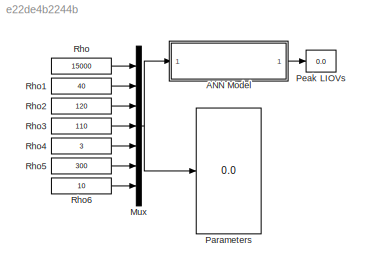
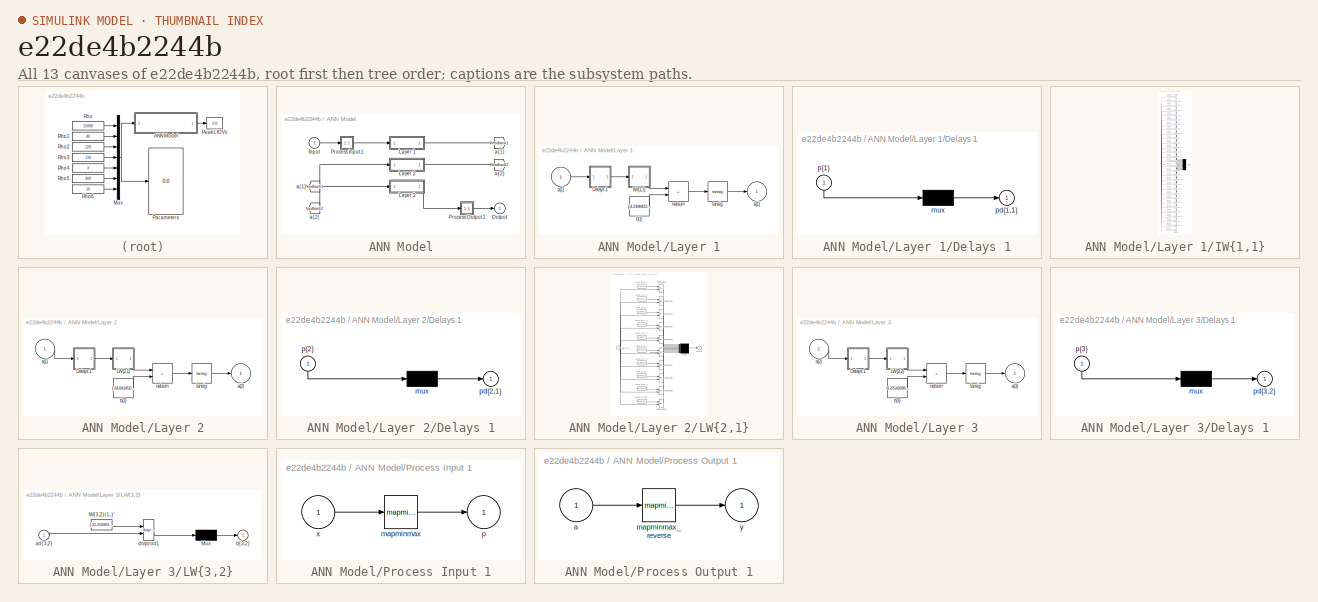
[diagram: thumbnail index - all 13 canvases of the model, root first then tree order]
MODEL slx_e22de4b2244b
KIND model
CONFIG AbsTol = auto
CONFIG EnableMultiTasking = off
CONFIG FixedStep = auto
CONFIG MaxStep = auto
CONFIG MinStep = auto
CONFIG RelTol = 1e-3
CONFIG SampleTimeConstraint = Unconstrained
CONFIG Solver = VariableStepAuto
CONFIG SolverName = VariableStepAuto
CONFIG StartTime = 0.0
CONFIG StopTime = 0.1
BLOCK [SubSystem] ANN Model
  Ports = [1, 1]
  RequestExecContextInheritance = off
BLOCK [From] ANN Model/ a{1} 
  GotoTag = feedback1
BLOCK [From] ANN Model/ a{2} 
  GotoTag = feedback2
BLOCK [Inport] ANN Model/Input
  PortDimensions = 7
BLOCK [SubSystem] ANN Model/Layer 1
  Ports = [1, 1]
  RequestExecContextInheritance = off
BLOCK [SubSystem] ANN Model/Layer 1/Delays 1
  Ports = [1, 1]
  RequestExecContextInheritance = off
BLOCK [Mux] ANN Model/Layer 1/Delays 1/mux
  Inputs = 1
  Ports = [1, 1]
BLOCK [Outport] ANN Model/Layer 1/Delays 1/pd{1,1}
BLOCK [Inport] ANN Model/Layer 1/Delays 1/p{1}
  NameLocation = left
  PortDimensions = 7
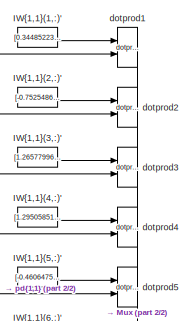
[diagram: ANN Model/Layer 1/IW{1,1} - part 1/2, top center region]
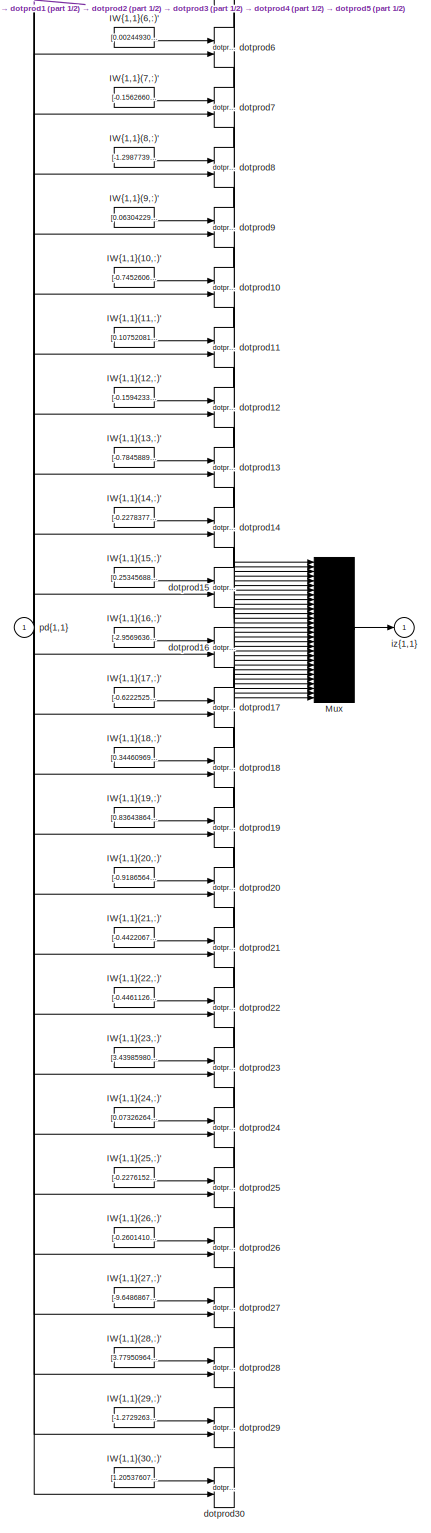
[diagram: ANN Model/Layer 1/IW{1,1} - part 2/2, most of the canvas]
BLOCK [SubSystem] ANN Model/Layer 1/IW{1,1}
  Ports = [1, 1]
  RequestExecContextInheritance = off
BLOCK [Constant] ANN Model/Layer 1/IW{1,1}/IW{1,1}(1,:)'
  Value = [0.3448522302365308878080440990743227303028106689453125;0.0237483186563666008594974954348799656145274639129638671875;-0.030342220055492342967173868828467675484716892242431640625;0.02335552297315511560693579440339817665517330169677734375;0.0001421167820220006696059489303962664052960462868213653564453125;-3.295039046024860862615923906560055911540985107421875;-0.00407630336533255574482659255863836733...<+21ch>
BLOCK [Constant] ANN Model/Layer 1/IW{1,1}/IW{1,1}(10,:)'
  Value = [-0.745260620125975048466671069036237895488739013671875;-0.036139502838535453310697675988194532692432403564453125;0.050521726495375507415275251332786865532398223876953125;1.6075838420978343368261676005204208195209503173828125;0.01057701175968173319674736632123313029296696186065673828125;-0.435164509700781521051027311841608025133609771728515625;-0.012433912320990853778157614328847557771950960159301...<+8ch>
BLOCK [Constant] ANN Model/Layer 1/IW{1,1}/IW{1,1}(11,:)'
  Value = [0.1075208124027290657043209876064793206751346588134765625;-0.00020841874431979786285416833546690895673236809670925140380859375;0.0086184347019432061554056190288974903523921966552734375;-0.91878914934653022061894489525002427399158477783203125;0.0001923404096374015733068862932242382157710380852222442626953125;0.06755343524663924570372586231314926408231258392333984375;0.00105188791019687169665808301...<+34ch>
BLOCK [Constant] ANN Model/Layer 1/IW{1,1}/IW{1,1}(12,:)'
  Value = [-0.1594233793625472739297066482322406955063343048095703125;-0.2123288116806423264648628901340998709201812744140625;0.405436649521685843478024935393477790057659149169921875;-0.0211904558074521888466623664726284914650022983551025390625;-0.0036782121032657394237019854443815347622148692607879638671875;-0.293359365982755859736386128133744932711124420166015625;0.0020946908621752003375193762479966608225...<+22ch>
BLOCK [Constant] ANN Model/Layer 1/IW{1,1}/IW{1,1}(13,:)'
  Value = [-0.784588966363430007078250127960927784442901611328125;21.78671996735630500552360899746417999267578125;-18.3088171181116621255569043569266796112060546875;2.49658113612057608321492807590402662754058837890625;-0.157676235625419991492890403605997562408447265625;-0.23765425018082042551981203359900973737239837646484375;-0.007369377513259535439349434682299033738672733306884765625]
BLOCK [Constant] ANN Model/Layer 1/IW{1,1}/IW{1,1}(14,:)'
  Value = [-0.227837793421028556029028777629719115793704986572265625;0.021309312244039098349634997475732234306633472442626953125;-2.892182695004396730809048676746897399425506591796875;0.032028928129140037117661421461889403872191905975341796875;0.0036536164758972544848447672194424740155227482318878173828125;0.772637113323102919792972897994332015514373779296875;-0.011296442334501482357422830204995989333838224...<+14ch>
BLOCK [Constant] ANN Model/Layer 1/IW{1,1}/IW{1,1}(15,:)'
  Value = [0.25345688340681682415578279687906615436077117919921875;0.0149587949298912552265061748357766191475093364715576171875;-0.016758926400474917495220239516129367984831333160400390625;0.0647332210713703337656710345981991849839687347412109375;-0.0012668836589356836930253535911106155253946781158447265625;0.00508054621757761913636297634866423322819173336029052734375;0.0039067068027666112389750807665222964...<+23ch>
BLOCK [Constant] ANN Model/Layer 1/IW{1,1}/IW{1,1}(16,:)'
  Value = [-2.9569636535694741041879751719534397125244140625;-0.0031105060544163766478309440799421281553804874420166015625;0.80326651097281398516969375123153440654277801513671875;0.0178893821224797265612149743674308410845696926116943359375;0.001987742974274367586950962305536450003273785114288330078125;0.1514435083030511164370324195260764099657535552978515625;0.07801855367079536807128903319608070887625217437...<+10ch>
BLOCK [Constant] ANN Model/Layer 1/IW{1,1}/IW{1,1}(17,:)'
  Value = [-0.62225252302450417829504658584482967853546142578125;-0.91162755556286700908685816102661192417144775390625;0.340987402740219047725389600600465200841426849365234375;-0.024044810647206656117891299118127790279686450958251953125;0.007613443911346290220165666795537617872469127178192138671875;0.190670230286742958814016901669674552977085113525390625;0.020700650669250735685933406671210832428187131881713...<+8ch>
BLOCK [Constant] ANN Model/Layer 1/IW{1,1}/IW{1,1}(18,:)'
  Value = [0.344609696654326669307266683972557075321674346923828125;0.094320042995400921181925468772533349692821502685546875;0.09050993945653572347875837067476822994649410247802734375;0.56773222085203289832833206673967652022838592529296875;7.65423725077612093943557614039718828280456364154815673828125e-05;0.047410632944010398792666904910220182500779628753662109375;-0.00661253821968285724480773879463413322810...<+20ch>
BLOCK [Constant] ANN Model/Layer 1/IW{1,1}/IW{1,1}(19,:)'
  Value = [0.8364386486605484005707467076717875897884368896484375;-24.39852649891798108683360624127089977264404296875;20.560902356213507147231212002225220203399658203125;-3.168857690798907444929000121192075312137603759765625;0.1540925974736297721090494405871140770614147186279296875;0.26928188024379551279707811772823333740234375;0.000770679205220097343111140819615911823348142206668853759765625]
BLOCK [Constant] ANN Model/Layer 1/IW{1,1}/IW{1,1}(2,:)'
  Value = [-0.752548608307870292577490545227192342281341552734375;0.11243153280728866716398073322125128470361232757568359375;0.5927209491473572899877808595192618668079376220703125;-0.06580359143040452607475998547670315019786357879638671875;0.0023946250384802689366303685147840951685793697834014892578125;-0.03233857021117332586346293510359828360378742218017578125;-0.0018092097531004448437985665520955080864951...<+18ch>
BLOCK [Constant] ANN Model/Layer 1/IW{1,1}/IW{1,1}(20,:)'
  Value = [-0.91865646013555168902797731789178214967250823974609375;0.0296954372580369753420459488779670209623873233795166015625;-0.011762440172248422864953454336500726640224456787109375;-0.18544587819202928979933631126186810433864593505859375;0.0035521157092755369609482496429109232849441468715667724609375;0.2370884083490034377472710502843256108462810516357421875;-0.00474860571920330664513754115318988624494...<+20ch>
BLOCK [Constant] ANN Model/Layer 1/IW{1,1}/IW{1,1}(21,:)'
  Value = [-0.4422067770750552906378061379655264317989349365234375;0.0288653681690222672917567336980937398038804531097412109375;6.37186863600328567969199866638518869876861572265625;-0.044887168425831465434772127309770439751446247100830078125;-0.1932639916606380126040676259435713291168212890625;-0.54801400216962703471068607541383244097232818603515625;0.048201396323313161484946931523154489696025848388671875]
BLOCK [Constant] ANN Model/Layer 1/IW{1,1}/IW{1,1}(22,:)'
  Value = [-0.446112631051539920701287655901978723704814910888671875;-0.07961079766109739608292983348292182199656963348388671875;-0.003218763112337450459088383780681397183798253536224365234375;0.00158061059209830558590359483872589407837949693202972412109375;0.0036382997739226471088647141272076623863540589809417724609375;0.345967262530882890825267850232194177806377410888671875;-0.0048699184408424927086866951...<+33ch>
BLOCK [Constant] ANN Model/Layer 1/IW{1,1}/IW{1,1}(23,:)'
  Value = [3.439859807894365406610859281499870121479034423828125;0.377279804240064409182053850599913857877254486083984375;0.0216043135620511972394552913101506419479846954345703125;-0.005745569542111579434962020940247384714893996715545654296875;0.03460094901719025506370286393575952388346195220947265625;0.459591711367286326339609558999654836952686309814453125;-0.20408877954194529213971520675841020420193672180...<+9ch>
BLOCK [Constant] ANN Model/Layer 1/IW{1,1}/IW{1,1}(24,:)'
  Value = [0.07326264796309016336106623157320427708327770233154296875;-0.132193034604881132221265715998015366494655609130859375;-2.253015043698611830080835716216824948787689208984375;-0.1327387273800798850320603605723590590059757232666015625;-0.0175531668497710020837576649910261039622128009796142578125;-1.48565727218548015997612310457043349742889404296875;-0.0091135973138698790629863566437052213586866855621...<+10ch>
BLOCK [Constant] ANN Model/Layer 1/IW{1,1}/IW{1,1}(25,:)'
  Value = [-0.22761522655829014016859446201124228537082672119140625;-0.0306264913088254674133903421306968084536492824554443359375;0.1467444247866898365817434068958391435444355010986328125;0.283168715939804582770733532015583477914333343505859375;-3.3096438118646325128591190178894976270385086536407470703125e-05;0.1691388093995498664856569348557968623936176300048828125;-0.01063316122752224618386307497530651744...<+20ch>
BLOCK [Constant] ANN Model/Layer 1/IW{1,1}/IW{1,1}(26,:)'
  Value = [-0.26014103282668343819494793933699838817119598388671875;7.17866524364082447817736465367488563060760498046875;0.7729500210780593238979463421856053173542022705078125;-0.03865847634880366368026471945995581336319446563720703125;-0.00426027980962515560869885433703529997728765010833740234375;-0.27698836242130819851325895797344855964183807373046875;0.0657931317305890106528210026226588524878025054931640...<+4ch>
BLOCK [Constant] ANN Model/Layer 1/IW{1,1}/IW{1,1}(27,:)'
  Value = [-9.6486867210206579414943917072378098964691162109375;0.7576846217616350909196398788481019437313079833984375;0.83601545732582505099372838230920024216175079345703125;-0.025185722885630867917683417545049451291561126708984375;-1.43125931626296587495517087518237531185150146484375;-4.98363377193292667044488553074188530445098876953125;-0.0049119029256305679620453474854002706706523895263671875]
BLOCK [Constant] ANN Model/Layer 1/IW{1,1}/IW{1,1}(28,:)'
  Value = [3.7795096419857117098217713646590709686279296875;0.1253334425111324590407235746170044876635074615478515625;0.10360601610988219578590729952338733710348606109619140625;0.001567890737294744089858067326304080779664218425750732421875;0.0345624670490160268432333623422891832888126373291015625;1.5522414538348936474676520447246730327606201171875;-0.1811251665173785607709788791908067651093006134033203125]
BLOCK [Constant] ANN Model/Layer 1/IW{1,1}/IW{1,1}(29,:)'
  Value = [-1.2729263310035310308165890091913752257823944091796875;0.0257278613259506704069590199424055754207074642181396484375;0.022764648795725643537490867629458080045878887176513671875;-0.00437574388560424409888582886196672916412353515625;-0.0023607924145831703233167075950404978357255458831787109375;0.0231650403676370957029018171624556998722255229949951171875;-0.012098695026969816593287454509209055686369...<+18ch>
BLOCK [Constant] ANN Model/Layer 1/IW{1,1}/IW{1,1}(3,:)'
  Value = [1.26577996526309011215971622732467949390411376953125;-0.129753538957110448048837270107469521462917327880859375;-0.70197856289481652680706247338093817234039306640625;-0.031912386202539534674205157216420047916471958160400390625;0.000840497151475362472110297584748650479014031589031219482421875;-1.0828412441507300201237740111537277698516845703125;0.0034135401403244799642400231221017747884616255760192...<+9ch>
BLOCK [Constant] ANN Model/Layer 1/IW{1,1}/IW{1,1}(30,:)'
  Value = [1.2053760795652903592412030775449238717555999755859375;0.07446028202006542418001089345125365070998668670654296875;-0.456725314104841018103542182871024124324321746826171875;-0.0289924253014325512822768615706081618554890155792236328125;-0.3439121476428221857446487774723209440708160400390625;0.7009527268420934209558481597923673689365386962890625;-0.021624572399332461086762791069304512348026037216186...<+8ch>
BLOCK [Constant] ANN Model/Layer 1/IW{1,1}/IW{1,1}(4,:)'
  Value = [1.2950585151400686445555265891016460955142974853515625;-0.173223230419484675035590726110967807471752166748046875;3.841757357224308666587830884964205324649810791015625;0.2057849653734108164027105658533400855958461761474609375;0.00957266633272023555190077814813776058144867420196533203125;0.313650203133755578477348535670898854732513427734375;-0.0179676448365098488657576325522313709370791912078857421...<+4ch>
BLOCK [Constant] ANN Model/Layer 1/IW{1,1}/IW{1,1}(5,:)'
  Value = [-0.460647597660743979286479543588939122855663299560546875;-0.06963513076575476856699964400831959210336208343505859375;-0.0022193402202923813264223706909206157433800399303436279296875;0.0026091251570878157446664591390117493574507534503936767578125;0.0036307085591989782073774062354232228244654834270477294921875;0.31041096606309703798132204610737971961498260498046875;-0.00500358166612570234160761728...<+32ch>
BLOCK [Constant] ANN Model/Layer 1/IW{1,1}/IW{1,1}(6,:)'
  Value = [0.0024493059636743947683756861266601845272816717624664306640625;0.08842594266869154007171260900577181018888950347900390625;-0.218776256361550458517939432567800395190715789794921875;-0.06621461363686119427907073031747131608426570892333984375;0.00110391502135288237067267669289094556006602942943572998046875;0.307907252101677519906530733351246453821659088134765625;-0.003876752311191684636365595295615...<+29ch>
BLOCK [Constant] ANN Model/Layer 1/IW{1,1}/IW{1,1}(7,:)'
  Value = [-0.1562660564463686230229910734124132432043552398681640625;-0.0647636649053276169940573936401051469147205352783203125;0.0652856262083485461289455997757613658905029296875;-0.01464262445750157647095246460366979590617120265960693359375;-0.00098185698318849841566280378657438632217235863208770751953125;0.7947962353307247429512472081114538013935089111328125;0.0036304524825613482437447476769420973141677...<+19ch>
BLOCK [Constant] ANN Model/Layer 1/IW{1,1}/IW{1,1}(8,:)'
  Value = [-1.2987739803438820285208521454478614032268524169921875;0.039903383470211710448705133558178204111754894256591796875;-0.145963179739080961550001802606857381761074066162109375;-1.4716769867982983921450568232103250920772552490234375;-5.2687437619749837545979342934288069955073297023773193359375e-05;2.47999107160288101425749118789099156856536865234375;-0.01315224112897133215693834529247396858409047126...<+12ch>
BLOCK [Constant] ANN Model/Layer 1/IW{1,1}/IW{1,1}(9,:)'
  Value = [0.0630422940980798485188785207355977036058902740478515625;0.01113967879787090310694797068435946130193769931793212890625;0.0638492352679780328372771691647358238697052001953125;-0.248561577597356475610723691715975292026996612548828125;-0.00119729920448310880702613712145421231980435550212860107421875;-0.1962684555440073197463135556972702033817768096923828125;0.001912086415045414827459935303011206997...<+24ch>
BLOCK [Mux] ANN Model/Layer 1/IW{1,1}/Mux
  Inputs = 30
  Ports = [30, 1]
BLOCK [Reference] ANN Model/Layer 1/IW{1,1}/dotprod1  REF=neural/Weight Functions/dotprod
  Ports = [2, 1]
  SourceBlock = neural/Weight Functions/dotprod
  SourceProductBaseCode = NN
  SourceType = DOTPROD
BLOCK [Reference] ANN Model/Layer 1/IW{1,1}/dotprod10  REF=neural/Weight Functions/dotprod
  Ports = [2, 1]
  SourceBlock = neural/Weight Functions/dotprod
  SourceProductBaseCode = NN
  SourceType = DOTPROD
BLOCK [Reference] ANN Model/Layer 1/IW{1,1}/dotprod11  REF=neural/Weight Functions/dotprod
  Ports = [2, 1]
  SourceBlock = neural/Weight Functions/dotprod
  SourceProductBaseCode = NN
  SourceType = DOTPROD
BLOCK [Reference] ANN Model/Layer 1/IW{1,1}/dotprod12  REF=neural/Weight Functions/dotprod
  Ports = [2, 1]
  SourceBlock = neural/Weight Functions/dotprod
  SourceProductBaseCode = NN
  SourceType = DOTPROD
BLOCK [Reference] ANN Model/Layer 1/IW{1,1}/dotprod13  REF=neural/Weight Functions/dotprod
  Ports = [2, 1]
  SourceBlock = neural/Weight Functions/dotprod
  SourceProductBaseCode = NN
  SourceType = DOTPROD
BLOCK [Reference] ANN Model/Layer 1/IW{1,1}/dotprod14  REF=neural/Weight Functions/dotprod
  Ports = [2, 1]
  SourceBlock = neural/Weight Functions/dotprod
  SourceProductBaseCode = NN
  SourceType = DOTPROD
BLOCK [Reference] ANN Model/Layer 1/IW{1,1}/dotprod15  REF=neural/Weight Functions/dotprod
  Ports = [2, 1]
  SourceBlock = neural/Weight Functions/dotprod
  SourceProductBaseCode = NN
  SourceType = DOTPROD
BLOCK [Reference] ANN Model/Layer 1/IW{1,1}/dotprod16  REF=neural/Weight Functions/dotprod
  Ports = [2, 1]
  SourceBlock = neural/Weight Functions/dotprod
  SourceProductBaseCode = NN
  SourceType = DOTPROD
BLOCK [Reference] ANN Model/Layer 1/IW{1,1}/dotprod17  REF=neural/Weight Functions/dotprod
  Ports = [2, 1]
  SourceBlock = neural/Weight Functions/dotprod
  SourceProductBaseCode = NN
  SourceType = DOTPROD
BLOCK [Reference] ANN Model/Layer 1/IW{1,1}/dotprod18  REF=neural/Weight Functions/dotprod
  Ports = [2, 1]
  SourceBlock = neural/Weight Functions/dotprod
  SourceProductBaseCode = NN
  SourceType = DOTPROD
BLOCK [Reference] ANN Model/Layer 1/IW{1,1}/dotprod19  REF=neural/Weight Functions/dotprod
  Ports = [2, 1]
  SourceBlock = neural/Weight Functions/dotprod
  SourceProductBaseCode = NN
  SourceType = DOTPROD
BLOCK [Reference] ANN Model/Layer 1/IW{1,1}/dotprod2  REF=neural/Weight Functions/dotprod
  Ports = [2, 1]
  SourceBlock = neural/Weight Functions/dotprod
  SourceProductBaseCode = NN
  SourceType = DOTPROD
BLOCK [Reference] ANN Model/Layer 1/IW{1,1}/dotprod20  REF=neural/Weight Functions/dotprod
  Ports = [2, 1]
  SourceBlock = neural/Weight Functions/dotprod
  SourceProductBaseCode = NN
  SourceType = DOTPROD
BLOCK [Reference] ANN Model/Layer 1/IW{1,1}/dotprod21  REF=neural/Weight Functions/dotprod
  Ports = [2, 1]
  SourceBlock = neural/Weight Functions/dotprod
  SourceProductBaseCode = NN
  SourceType = DOTPROD
BLOCK [Reference] ANN Model/Layer 1/IW{1,1}/dotprod22  REF=neural/Weight Functions/dotprod
  Ports = [2, 1]
  SourceBlock = neural/Weight Functions/dotprod
  SourceProductBaseCode = NN
  SourceType = DOTPROD
BLOCK [Reference] ANN Model/Layer 1/IW{1,1}/dotprod23  REF=neural/Weight Functions/dotprod
  Ports = [2, 1]
  SourceBlock = neural/Weight Functions/dotprod
  SourceProductBaseCode = NN
  SourceType = DOTPROD
BLOCK [Reference] ANN Model/Layer 1/IW{1,1}/dotprod24  REF=neural/Weight Functions/dotprod
  Ports = [2, 1]
  SourceBlock = neural/Weight Functions/dotprod
  SourceProductBaseCode = NN
  SourceType = DOTPROD
BLOCK [Reference] ANN Model/Layer 1/IW{1,1}/dotprod25  REF=neural/Weight Functions/dotprod
  Ports = [2, 1]
  SourceBlock = neural/Weight Functions/dotprod
  SourceProductBaseCode = NN
  SourceType = DOTPROD
BLOCK [Reference] ANN Model/Layer 1/IW{1,1}/dotprod26  REF=neural/Weight Functions/dotprod
  Ports = [2, 1]
  SourceBlock = neural/Weight Functions/dotprod
  SourceProductBaseCode = NN
  SourceType = DOTPROD
BLOCK [Reference] ANN Model/Layer 1/IW{1,1}/dotprod27  REF=neural/Weight Functions/dotprod
  Ports = [2, 1]
  SourceBlock = neural/Weight Functions/dotprod
  SourceProductBaseCode = NN
  SourceType = DOTPROD
BLOCK [Reference] ANN Model/Layer 1/IW{1,1}/dotprod28  REF=neural/Weight Functions/dotprod
  Ports = [2, 1]
  SourceBlock = neural/Weight Functions/dotprod
  SourceProductBaseCode = NN
  SourceType = DOTPROD
BLOCK [Reference] ANN Model/Layer 1/IW{1,1}/dotprod29  REF=neural/Weight Functions/dotprod
  Ports = [2, 1]
  SourceBlock = neural/Weight Functions/dotprod
  SourceProductBaseCode = NN
  SourceType = DOTPROD
BLOCK [Reference] ANN Model/Layer 1/IW{1,1}/dotprod3  REF=neural/Weight Functions/dotprod
  Ports = [2, 1]
  SourceBlock = neural/Weight Functions/dotprod
  SourceProductBaseCode = NN
  SourceType = DOTPROD
BLOCK [Reference] ANN Model/Layer 1/IW{1,1}/dotprod30  REF=neural/Weight Functions/dotprod
  Ports = [2, 1]
  SourceBlock = neural/Weight Functions/dotprod
  SourceProductBaseCode = NN
  SourceType = DOTPROD
BLOCK [Reference] ANN Model/Layer 1/IW{1,1}/dotprod4  REF=neural/Weight Functions/dotprod
  Ports = [2, 1]
  SourceBlock = neural/Weight Functions/dotprod
  SourceProductBaseCode = NN
  SourceType = DOTPROD
BLOCK [Reference] ANN Model/Layer 1/IW{1,1}/dotprod5  REF=neural/Weight Functions/dotprod
  Ports = [2, 1]
  SourceBlock = neural/Weight Functions/dotprod
  SourceProductBaseCode = NN
  SourceType = DOTPROD
BLOCK [Reference] ANN Model/Layer 1/IW{1,1}/dotprod6  REF=neural/Weight Functions/dotprod
  Ports = [2, 1]
  SourceBlock = neural/Weight Functions/dotprod
  SourceProductBaseCode = NN
  SourceType = DOTPROD
BLOCK [Reference] ANN Model/Layer 1/IW{1,1}/dotprod7  REF=neural/Weight Functions/dotprod
  Ports = [2, 1]
  SourceBlock = neural/Weight Functions/dotprod
  SourceProductBaseCode = NN
  SourceType = DOTPROD
BLOCK [Reference] ANN Model/Layer 1/IW{1,1}/dotprod8  REF=neural/Weight Functions/dotprod
  Ports = [2, 1]
  SourceBlock = neural/Weight Functions/dotprod
  SourceProductBaseCode = NN
  SourceType = DOTPROD
BLOCK [Reference] ANN Model/Layer 1/IW{1,1}/dotprod9  REF=neural/Weight Functions/dotprod
  Ports = [2, 1]
  SourceBlock = neural/Weight Functions/dotprod
  SourceProductBaseCode = NN
  SourceType = DOTPROD
BLOCK [Outport] ANN Model/Layer 1/IW{1,1}/iz{1,1}
BLOCK [Inport] ANN Model/Layer 1/IW{1,1}/pd{1,1}
  PortDimensions = 7
BLOCK [Outport] ANN Model/Layer 1/a{1}
  InitialOutput = [0;0;0;0;0;0;0;0;0;0;0;0;0;0;0;0;0;0;0;0;0;0;0;0;0;0;0;0;0;0]
BLOCK [Constant] ANN Model/Layer 1/b{1}
  Value = [-4.21884236807136492330982946441508829593658447265625;0.98707185775102235236744263602304272353649139404296875;-1.924835431116346029511987580917775630950927734375;-7.0306393042924586467279368662275373935699462890625;-0.27154440122553591407950079883448779582977294921875;-0.86617933572449012924465705509646795690059661865234375;1.052050375427601380806663655675947666168212890625;6.48814145943306108677...<+1254ch>
BLOCK [Sum] ANN Model/Layer 1/netsum
  IconShape = rectangular
  InputSameDT = on
  Inputs = 2
  OutDataTypeStr = Inherit: Same as first input
  Ports = [2, 1]
  SaturateOnIntegerOverflow = on
BLOCK [Inport] ANN Model/Layer 1/p{1}
  PortDimensions = 7
BLOCK [Reference] ANN Model/Layer 1/tansig  REF=neural/Transfer Functions/tansig
  Ports = [1, 1]
  SourceBlock = neural/Transfer Functions/tansig
  SourceProductBaseCode = NN
  SourceType = TANSIG
BLOCK [SubSystem] ANN Model/Layer 2
  Ports = [1, 1]
  RequestExecContextInheritance = off
BLOCK [SubSystem] ANN Model/Layer 2/Delays 1
  Ports = [1, 1]
  RequestExecContextInheritance = off
BLOCK [Mux] ANN Model/Layer 2/Delays 1/mux
  Inputs = 1
  Ports = [1, 1]
BLOCK [Outport] ANN Model/Layer 2/Delays 1/pd{2,1}
BLOCK [Inport] ANN Model/Layer 2/Delays 1/p{2}
  NameLocation = left
  PortDimensions = 30
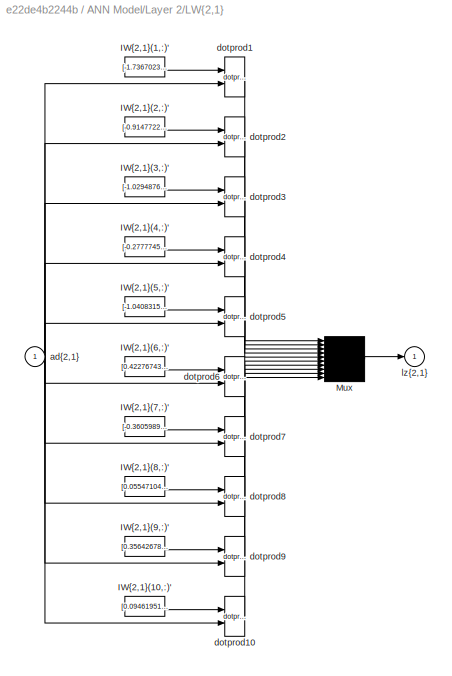
BLOCK [SubSystem] ANN Model/Layer 2/LW{2,1}
  Ports = [1, 1]
  RequestExecContextInheritance = off
BLOCK [Constant] ANN Model/Layer 2/LW{2,1}/IW{2,1}(1,:)'
  Value = [-1.736702373060485360412030786392278969287872314453125;-0.10084032094074872609734683237547869794070720672607421875;-0.0187677676469678068882362964586718589998781681060791015625;0.73159532536644589217900147559703327715396881103515625;0.94918452673003572694909735218971036374568939208984375;0.67829040341776580813615282750106416642665863037109375;0.1514320792879229604643853690504329279065132141113281...<+1339ch>
BLOCK [Constant] ANN Model/Layer 2/LW{2,1}/IW{2,1}(10,:)'
  Value = [0.094619519040325006375979910444584675133228302001953125;-2.396111047777731872798767653875984251499176025390625;-1.219313666844150656487499873037450015544891357421875;6.35986947872400332215647722478024661540985107421875;7.6558010484814378315832072985358536243438720703125;-3.474598490477485146499248003237880766391754150390625;-0.7319582115567457858418265459476970136165618896484375;-8.2900966070531...<+1247ch>
BLOCK [Constant] ANN Model/Layer 2/LW{2,1}/IW{2,1}(2,:)'
  Value = [-0.9147722841332333043595781418844126164913177490234375;-2.12550122100013094694759274716489017009735107421875;-2.0475929066404372491660978994332253932952880859375;17.084084558817114185558239114470779895782470703125;-2.780211941650253759661381991463713347911834716796875;-10.34486710781697382799393380992114543914794921875;-0.32324176368686552418552082599489949643611907958984375;19.38940670661893506...<+1283ch>
BLOCK [Constant] ANN Model/Layer 2/LW{2,1}/IW{2,1}(3,:)'
  Value = [-1.0294876867988396185182864428497850894927978515625;0.1739605865485802371761536733174580149352550506591796875;0.016606134747498335624271703636622987687587738037109375;-0.307846726773079171213254312533535994589328765869140625;3.379667863926612003666605232865549623966217041015625;-0.48517807121968814509926914979587309062480926513671875;0.9269091651425327427205047570168972015380859375;4.32603651766...<+1326ch>
BLOCK [Constant] ANN Model/Layer 2/LW{2,1}/IW{2,1}(4,:)'
  Value = [-0.27777458184173975386244137553148902952671051025390625;-12.361230614434671082335626124404370784759521484375;-0.2324868520111587899545924074118374846875667572021484375;-4.33612685300502231910968475858680903911590576171875;15.6709913578044730542160323238931596279144287109375;-27.58078431099844607388149597682058811187744140625;-1.3202895238115470721851352209341712296009063720703125;10.240951696608...<+1205ch>
BLOCK [Constant] ANN Model/Layer 2/LW{2,1}/IW{2,1}(5,:)'
  Value = [-1.0408315320648624524579872741014696657657623291015625;-0.64246622374551787260088531184010207653045654296875;0.1468046894595778362191396126945619471371173858642578125;-2.40241097625543975624395898194052278995513916015625;14.2558727307199060163611648022197186946868896484375;3.69614714690088330684147877036593854427337646484375;-1.044715924230513959258814793429337441921234130859375;-1.0876381478993...<+1290ch>
BLOCK [Constant] ANN Model/Layer 2/LW{2,1}/IW{2,1}(6,:)'
  Value = [0.422767438680426932418043861616752110421657562255859375;0.432313720012852786833690288403886370360851287841796875;-0.81927705514701976152736051517422311007976531982421875;-0.445561973928590593363452398989466018974781036376953125;10.690812896910866669486495084129273891448974609375;-0.70817591383247135983225462041446007788181304931640625;0.023269063305959784837551040936887147836387157440185546875;-...<+1337ch>
BLOCK [Constant] ANN Model/Layer 2/LW{2,1}/IW{2,1}(7,:)'
  Value = [-0.360598959094513060730236020390293560922145843505859375;4.960880004976200297051036613993346691131591796875;2.04180159619436540907599919592030346393585205078125;-1.023614571518048688147928260150365531444549560546875;15.9550062286956748636157499277032911777496337890625;9.8852510352074460797666688449680805206298828125;-1.1023548335418780208527778086136095225811004638671875;17.821984166130633298052...<+1221ch>
BLOCK [Constant] ANN Model/Layer 2/LW{2,1}/IW{2,1}(8,:)'
  Value = [0.05547104367496639987233919555364991538226604461669921875;0.00715788085070603700976743510864253039471805095672607421875;-0.00278113093058021502990140305655586416833102703094482421875;0.0133484936463816976359719745914844679646193981170654296875;0.74010371014631515240722592352540232241153717041015625;-0.0630951542673680310091555156759568490087985992431640625;-0.018945134937043715817051037220153375...<+1457ch>
BLOCK [Constant] ANN Model/Layer 2/LW{2,1}/IW{2,1}(9,:)'
  Value = [0.3564267883744840492710181933944113552570343017578125;0.037056015635938667485138608981287688948214054107666015625;0.7767753989225238964166919686249457299709320068359375;5.515529504551583528382252552546560764312744140625;5.8589191149324886254134980845265090465545654296875;-1.876388577546759250935792806558310985565185546875;0.67462388304596621058095706757740117609500885009765625;10.677484273925363...<+1273ch>
BLOCK [Mux] ANN Model/Layer 2/LW{2,1}/Mux
  Inputs = 10
  Ports = [10, 1]
BLOCK [Inport] ANN Model/Layer 2/LW{2,1}/ad{2,1}
  PortDimensions = 30
BLOCK [Reference] ANN Model/Layer 2/LW{2,1}/dotprod1  REF=neural/Weight Functions/dotprod
  Ports = [2, 1]
  SourceBlock = neural/Weight Functions/dotprod
  SourceProductBaseCode = NN
  SourceType = DOTPROD
BLOCK [Reference] ANN Model/Layer 2/LW{2,1}/dotprod10  REF=neural/Weight Functions/dotprod
  Ports = [2, 1]
  SourceBlock = neural/Weight Functions/dotprod
  SourceProductBaseCode = NN
  SourceType = DOTPROD
BLOCK [Reference] ANN Model/Layer 2/LW{2,1}/dotprod2  REF=neural/Weight Functions/dotprod
  Ports = [2, 1]
  SourceBlock = neural/Weight Functions/dotprod
  SourceProductBaseCode = NN
  SourceType = DOTPROD
BLOCK [Reference] ANN Model/Layer 2/LW{2,1}/dotprod3  REF=neural/Weight Functions/dotprod
  Ports = [2, 1]
  SourceBlock = neural/Weight Functions/dotprod
  SourceProductBaseCode = NN
  SourceType = DOTPROD
BLOCK [Reference] ANN Model/Layer 2/LW{2,1}/dotprod4  REF=neural/Weight Functions/dotprod
  Ports = [2, 1]
  SourceBlock = neural/Weight Functions/dotprod
  SourceProductBaseCode = NN
  SourceType = DOTPROD
BLOCK [Reference] ANN Model/Layer 2/LW{2,1}/dotprod5  REF=neural/Weight Functions/dotprod
  Ports = [2, 1]
  SourceBlock = neural/Weight Functions/dotprod
  SourceProductBaseCode = NN
  SourceType = DOTPROD
BLOCK [Reference] ANN Model/Layer 2/LW{2,1}/dotprod6  REF=neural/Weight Functions/dotprod
  Ports = [2, 1]
  SourceBlock = neural/Weight Functions/dotprod
  SourceProductBaseCode = NN
  SourceType = DOTPROD
BLOCK [Reference] ANN Model/Layer 2/LW{2,1}/dotprod7  REF=neural/Weight Functions/dotprod
  Ports = [2, 1]
  SourceBlock = neural/Weight Functions/dotprod
  SourceProductBaseCode = NN
  SourceType = DOTPROD
BLOCK [Reference] ANN Model/Layer 2/LW{2,1}/dotprod8  REF=neural/Weight Functions/dotprod
  Ports = [2, 1]
  SourceBlock = neural/Weight Functions/dotprod
  SourceProductBaseCode = NN
  SourceType = DOTPROD
BLOCK [Reference] ANN Model/Layer 2/LW{2,1}/dotprod9  REF=neural/Weight Functions/dotprod
  Ports = [2, 1]
  SourceBlock = neural/Weight Functions/dotprod
  SourceProductBaseCode = NN
  SourceType = DOTPROD
BLOCK [Outport] ANN Model/Layer 2/LW{2,1}/lz{2,1}
BLOCK [Inport] ANN Model/Layer 2/a{1} 
  PortDimensions = 30
BLOCK [Outport] ANN Model/Layer 2/a{2}
  InitialOutput = [0;0;0;0;0;0;0;0;0;0]
BLOCK [Constant] ANN Model/Layer 2/b{2}
  Value = [-14.8418507801999144390947549254633486270904541015625;-11.1243180357406341585146947181783616542816162109375;-4.52716808246609669907911666086874902248382568359375;-0.350434686094448277771107314038090407848358154296875;1.0967436167165016680513645042083226144313812255859375;-0.79822685580333840871247730319737456738948822021484375;-5.999465252637374845789963728748261928558349609375;0.4785130888415979...<+145ch>
BLOCK [Sum] ANN Model/Layer 2/netsum
  IconShape = rectangular
  InputSameDT = on
  Inputs = 2
  OutDataTypeStr = Inherit: Same as first input
  Ports = [2, 1]
  SaturateOnIntegerOverflow = on
BLOCK [Reference] ANN Model/Layer 2/tansig  REF=neural/Transfer Functions/tansig
  Ports = [1, 1]
  SourceBlock = neural/Transfer Functions/tansig
  SourceProductBaseCode = NN
  SourceType = TANSIG
BLOCK [SubSystem] ANN Model/Layer 3
  Ports = [1, 1]
  RequestExecContextInheritance = off
BLOCK [SubSystem] ANN Model/Layer 3/Delays 1
  Ports = [1, 1]
  RequestExecContextInheritance = off
BLOCK [Mux] ANN Model/Layer 3/Delays 1/mux
  Inputs = 1
  Ports = [1, 1]
BLOCK [Outport] ANN Model/Layer 3/Delays 1/pd{3,2}
BLOCK [Inport] ANN Model/Layer 3/Delays 1/p{3}
  NameLocation = left
  PortDimensions = 10
BLOCK [SubSystem] ANN Model/Layer 3/LW{3,2}
  Ports = [1, 1]
  RequestExecContextInheritance = off
BLOCK [Constant] ANN Model/Layer 3/LW{3,2}/IW{3,2}(1,:)'
  Value = [-25.250883780423141189430680242367088794708251953125;-29.33588427454181868370142183266580104827880859375;-0.7097479285049075325986223106156103312969207763671875;5.2022367175545642936640433617867529392242431640625;0.13769657712473393207375238489476032555103302001953125;-13.2628980233947917355408208095468580722808837890625;0.0110021376052105122889113175688180490396916866302490234375;27.910071481600...<+140ch>
BLOCK [Mux] ANN Model/Layer 3/LW{3,2}/Mux
  Inputs = 1
  Ports = [1, 1]
BLOCK [Inport] ANN Model/Layer 3/LW{3,2}/ad{3,2}
  PortDimensions = 10
BLOCK [Reference] ANN Model/Layer 3/LW{3,2}/dotprod1  REF=neural/Weight Functions/dotprod
  Ports = [2, 1]
  SourceBlock = neural/Weight Functions/dotprod
  SourceProductBaseCode = NN
  SourceType = DOTPROD
BLOCK [Outport] ANN Model/Layer 3/LW{3,2}/lz{3,2}
BLOCK [Inport] ANN Model/Layer 3/a{2} 
  PortDimensions = 10
BLOCK [Outport] ANN Model/Layer 3/a{3}
  InitialOutput = 0
BLOCK [Constant] ANN Model/Layer 3/b{3}
  Value = -8.225426963230088261980199604295194149017333984375
BLOCK [Sum] ANN Model/Layer 3/netsum
  IconShape = rectangular
  InputSameDT = on
  Inputs = 2
  OutDataTypeStr = Inherit: Same as first input
  Ports = [2, 1]
  SaturateOnIntegerOverflow = on
BLOCK [Reference] ANN Model/Layer 3/tansig  REF=neural/Transfer Functions/tansig
  Ports = [1, 1]
  SourceBlock = neural/Transfer Functions/tansig
  SourceProductBaseCode = NN
  SourceType = TANSIG
BLOCK [Outport] ANN Model/Output
  InitialOutput = 0
BLOCK [SubSystem] ANN Model/Process Input 1
  Ports = [1, 1]
  RequestExecContextInheritance = off
BLOCK [Reference] ANN Model/Process Input 1/mapminmax  REF=neural/Processing Functions/mapminmax
  Ports = [1, 1]
  SourceBlock = neural/Processing Functions/mapminmax
  SourceProductBaseCode = NN
  SourceType = MAPMINMAX Preprocess
BLOCK [Outport] ANN Model/Process Input 1/p
  PortDimensions = 7
BLOCK [Inport] ANN Model/Process Input 1/x
  PortDimensions = 7
BLOCK [SubSystem] ANN Model/Process Output 1
  Ports = [1, 1]
  RequestExecContextInheritance = off
BLOCK [Inport] ANN Model/Process Output 1/a
  PortDimensions = 1
BLOCK [Reference] ANN Model/Process Output 1/mapminmax_reverse  REF=neural/Processing Functions/mapminmax_reverse
  Ports = [1, 1]
  SourceBlock = neural/Processing Functions/mapminmax_reverse
  SourceProductBaseCode = NN
  SourceType = MAPMINMAX Reverse Process
BLOCK [Outport] ANN Model/Process Output 1/y
  PortDimensions = 1
BLOCK [Goto] ANN Model/a{1}
  GotoTag = feedback1
BLOCK [Goto] ANN Model/a{2}
  GotoTag = feedback2
BLOCK [Mux] Mux
  DisplayOption = bar
  Inputs = 7
  Ports = [7, 1]
BLOCK [Display] Parameters
  Decimation = 1
  Ports = [1]
BLOCK [Display] Peak LIOVs
  Decimation = 1
  Ports = [1]
BLOCK [Constant] Rho
  SampleTime = 1
  Value = 15000
BLOCK [Constant] Rho1
  SampleTime = 1
  Value = 40
BLOCK [Constant] Rho2
  SampleTime = 1
  Value = 120
BLOCK [Constant] Rho3
  SampleTime = 1
  Value = 110
BLOCK [Constant] Rho4
  SampleTime = 1
  Value = 3
BLOCK [Constant] Rho5
  SampleTime = 1
  Value = 300
BLOCK [Constant] Rho6
  SampleTime = 1
  Value = 10
LINE ANN Model/ a{1} :1 -> ANN Model/Layer 2:1
LINE ANN Model/ a{2} :1 -> ANN Model/Layer 3:1
LINE ANN Model/Input:1 -> ANN Model/Process Input 1:1
LINE ANN Model/Layer 1/Delays 1/mux:1 -> ANN Model/Layer 1/Delays 1/pd{1,1}:1
LINE ANN Model/Layer 1/Delays 1/p{1}:1 -> ANN Model/Layer 1/Delays 1/mux:1
LINE ANN Model/Layer 1/Delays 1:1 -> ANN Model/Layer 1/IW{1,1}:1
LINE ANN Model/Layer 1/IW{1,1}/IW{1,1}(1,:)':1 -> ANN Model/Layer 1/IW{1,1}/dotprod1:1
LINE ANN Model/Layer 1/IW{1,1}/IW{1,1}(10,:)':1 -> ANN Model/Layer 1/IW{1,1}/dotprod10:1
LINE ANN Model/Layer 1/IW{1,1}/IW{1,1}(11,:)':1 -> ANN Model/Layer 1/IW{1,1}/dotprod11:1
LINE ANN Model/Layer 1/IW{1,1}/IW{1,1}(12,:)':1 -> ANN Model/Layer 1/IW{1,1}/dotprod12:1
LINE ANN Model/Layer 1/IW{1,1}/IW{1,1}(13,:)':1 -> ANN Model/Layer 1/IW{1,1}/dotprod13:1
LINE ANN Model/Layer 1/IW{1,1}/IW{1,1}(14,:)':1 -> ANN Model/Layer 1/IW{1,1}/dotprod14:1
LINE ANN Model/Layer 1/IW{1,1}/IW{1,1}(15,:)':1 -> ANN Model/Layer 1/IW{1,1}/dotprod15:1
LINE ANN Model/Layer 1/IW{1,1}/IW{1,1}(16,:)':1 -> ANN Model/Layer 1/IW{1,1}/dotprod16:1
LINE ANN Model/Layer 1/IW{1,1}/IW{1,1}(17,:)':1 -> ANN Model/Layer 1/IW{1,1}/dotprod17:1
LINE ANN Model/Layer 1/IW{1,1}/IW{1,1}(18,:)':1 -> ANN Model/Layer 1/IW{1,1}/dotprod18:1
LINE ANN Model/Layer 1/IW{1,1}/IW{1,1}(19,:)':1 -> ANN Model/Layer 1/IW{1,1}/dotprod19:1
LINE ANN Model/Layer 1/IW{1,1}/IW{1,1}(2,:)':1 -> ANN Model/Layer 1/IW{1,1}/dotprod2:1
LINE ANN Model/Layer 1/IW{1,1}/IW{1,1}(20,:)':1 -> ANN Model/Layer 1/IW{1,1}/dotprod20:1
LINE ANN Model/Layer 1/IW{1,1}/IW{1,1}(21,:)':1 -> ANN Model/Layer 1/IW{1,1}/dotprod21:1
LINE ANN Model/Layer 1/IW{1,1}/IW{1,1}(22,:)':1 -> ANN Model/Layer 1/IW{1,1}/dotprod22:1
LINE ANN Model/Layer 1/IW{1,1}/IW{1,1}(23,:)':1 -> ANN Model/Layer 1/IW{1,1}/dotprod23:1
LINE ANN Model/Layer 1/IW{1,1}/IW{1,1}(24,:)':1 -> ANN Model/Layer 1/IW{1,1}/dotprod24:1
LINE ANN Model/Layer 1/IW{1,1}/IW{1,1}(25,:)':1 -> ANN Model/Layer 1/IW{1,1}/dotprod25:1
LINE ANN Model/Layer 1/IW{1,1}/IW{1,1}(26,:)':1 -> ANN Model/Layer 1/IW{1,1}/dotprod26:1
LINE ANN Model/Layer 1/IW{1,1}/IW{1,1}(27,:)':1 -> ANN Model/Layer 1/IW{1,1}/dotprod27:1
LINE ANN Model/Layer 1/IW{1,1}/IW{1,1}(28,:)':1 -> ANN Model/Layer 1/IW{1,1}/dotprod28:1
LINE ANN Model/Layer 1/IW{1,1}/IW{1,1}(29,:)':1 -> ANN Model/Layer 1/IW{1,1}/dotprod29:1
LINE ANN Model/Layer 1/IW{1,1}/IW{1,1}(3,:)':1 -> ANN Model/Layer 1/IW{1,1}/dotprod3:1
LINE ANN Model/Layer 1/IW{1,1}/IW{1,1}(30,:)':1 -> ANN Model/Layer 1/IW{1,1}/dotprod30:1
LINE ANN Model/Layer 1/IW{1,1}/IW{1,1}(4,:)':1 -> ANN Model/Layer 1/IW{1,1}/dotprod4:1
LINE ANN Model/Layer 1/IW{1,1}/IW{1,1}(5,:)':1 -> ANN Model/Layer 1/IW{1,1}/dotprod5:1
LINE ANN Model/Layer 1/IW{1,1}/IW{1,1}(6,:)':1 -> ANN Model/Layer 1/IW{1,1}/dotprod6:1
LINE ANN Model/Layer 1/IW{1,1}/IW{1,1}(7,:)':1 -> ANN Model/Layer 1/IW{1,1}/dotprod7:1
LINE ANN Model/Layer 1/IW{1,1}/IW{1,1}(8,:)':1 -> ANN Model/Layer 1/IW{1,1}/dotprod8:1
LINE ANN Model/Layer 1/IW{1,1}/IW{1,1}(9,:)':1 -> ANN Model/Layer 1/IW{1,1}/dotprod9:1
LINE ANN Model/Layer 1/IW{1,1}/Mux:1 -> ANN Model/Layer 1/IW{1,1}/iz{1,1}:1
LINE ANN Model/Layer 1/IW{1,1}/dotprod10:1 -> ANN Model/Layer 1/IW{1,1}/Mux:10
LINE ANN Model/Layer 1/IW{1,1}/dotprod11:1 -> ANN Model/Layer 1/IW{1,1}/Mux:11
LINE ANN Model/Layer 1/IW{1,1}/dotprod12:1 -> ANN Model/Layer 1/IW{1,1}/Mux:12
LINE ANN Model/Layer 1/IW{1,1}/dotprod13:1 -> ANN Model/Layer 1/IW{1,1}/Mux:13
LINE ANN Model/Layer 1/IW{1,1}/dotprod14:1 -> ANN Model/Layer 1/IW{1,1}/Mux:14
LINE ANN Model/Layer 1/IW{1,1}/dotprod15:1 -> ANN Model/Layer 1/IW{1,1}/Mux:15
LINE ANN Model/Layer 1/IW{1,1}/dotprod16:1 -> ANN Model/Layer 1/IW{1,1}/Mux:16
LINE ANN Model/Layer 1/IW{1,1}/dotprod17:1 -> ANN Model/Layer 1/IW{1,1}/Mux:17
LINE ANN Model/Layer 1/IW{1,1}/dotprod18:1 -> ANN Model/Layer 1/IW{1,1}/Mux:18
LINE ANN Model/Layer 1/IW{1,1}/dotprod19:1 -> ANN Model/Layer 1/IW{1,1}/Mux:19
LINE ANN Model/Layer 1/IW{1,1}/dotprod1:1 -> ANN Model/Layer 1/IW{1,1}/Mux:1
LINE ANN Model/Layer 1/IW{1,1}/dotprod20:1 -> ANN Model/Layer 1/IW{1,1}/Mux:20
LINE ANN Model/Layer 1/IW{1,1}/dotprod21:1 -> ANN Model/Layer 1/IW{1,1}/Mux:21
LINE ANN Model/Layer 1/IW{1,1}/dotprod22:1 -> ANN Model/Layer 1/IW{1,1}/Mux:22
LINE ANN Model/Layer 1/IW{1,1}/dotprod23:1 -> ANN Model/Layer 1/IW{1,1}/Mux:23
LINE ANN Model/Layer 1/IW{1,1}/dotprod24:1 -> ANN Model/Layer 1/IW{1,1}/Mux:24
LINE ANN Model/Layer 1/IW{1,1}/dotprod25:1 -> ANN Model/Layer 1/IW{1,1}/Mux:25
LINE ANN Model/Layer 1/IW{1,1}/dotprod26:1 -> ANN Model/Layer 1/IW{1,1}/Mux:26
LINE ANN Model/Layer 1/IW{1,1}/dotprod27:1 -> ANN Model/Layer 1/IW{1,1}/Mux:27
LINE ANN Model/Layer 1/IW{1,1}/dotprod28:1 -> ANN Model/Layer 1/IW{1,1}/Mux:28
LINE ANN Model/Layer 1/IW{1,1}/dotprod29:1 -> ANN Model/Layer 1/IW{1,1}/Mux:29
LINE ANN Model/Layer 1/IW{1,1}/dotprod2:1 -> ANN Model/Layer 1/IW{1,1}/Mux:2
LINE ANN Model/Layer 1/IW{1,1}/dotprod30:1 -> ANN Model/Layer 1/IW{1,1}/Mux:30
LINE ANN Model/Layer 1/IW{1,1}/dotprod3:1 -> ANN Model/Layer 1/IW{1,1}/Mux:3
LINE ANN Model/Layer 1/IW{1,1}/dotprod4:1 -> ANN Model/Layer 1/IW{1,1}/Mux:4
LINE ANN Model/Layer 1/IW{1,1}/dotprod5:1 -> ANN Model/Layer 1/IW{1,1}/Mux:5
LINE ANN Model/Layer 1/IW{1,1}/dotprod6:1 -> ANN Model/Layer 1/IW{1,1}/Mux:6
LINE ANN Model/Layer 1/IW{1,1}/dotprod7:1 -> ANN Model/Layer 1/IW{1,1}/Mux:7
LINE ANN Model/Layer 1/IW{1,1}/dotprod8:1 -> ANN Model/Layer 1/IW{1,1}/Mux:8
LINE ANN Model/Layer 1/IW{1,1}/dotprod9:1 -> ANN Model/Layer 1/IW{1,1}/Mux:9
NET ANN Model/Layer 1/IW{1,1}/pd{1,1}:1 -> ANN Model/Layer 1/IW{1,1}/dotprod10:2, ANN Model/Layer 1/IW{1,1}/dotprod11:2, ANN Model/Layer 1/IW{1,1}/dotprod12:2, ANN Model/Layer 1/IW{1,1}/dotprod13:2, ANN Model/Layer 1/IW{1,1}/dotprod14:2, ANN Model/Layer 1/IW{1,1}/dotprod15:2, ANN Model/Layer 1/IW{1,1}/dotprod16:2, ANN Model/Layer 1/IW{1,1}/dotprod17:2, ANN Model/Layer 1/IW{1,1}/dotprod18:2, ANN Model/Layer 1/IW{1,1}/dotprod19:2, ANN Model/Layer 1/IW{1,1}/dotprod1:2, ANN Model/Layer 1/IW{1,1}/dotprod20:2, ANN Model/Layer 1/IW{1,1}/dotprod21:2, ANN Model/Layer 1/IW{1,1}/dotprod22:2, ANN Model/Layer 1/IW{1,1}/dotprod23:2, ANN Model/Layer 1/IW{1,1}/dotprod24:2, ANN Model/Layer 1/IW{1,1}/dotprod25:2, ANN Model/Layer 1/IW{1,1}/dotprod26:2, ANN Model/Layer 1/IW{1,1}/dotprod27:2, ANN Model/Layer 1/IW{1,1}/dotprod28:2, ANN Model/Layer 1/IW{1,1}/dotprod29:2, ANN Model/Layer 1/IW{1,1}/dotprod2:2, ANN Model/Layer 1/IW{1,1}/dotprod30:2, ANN Model/Layer 1/IW{1,1}/dotprod3:2, ANN Model/Layer 1/IW{1,1}/dotprod4:2, ANN Model/Layer 1/IW{1,1}/dotprod5:2, ANN Model/Layer 1/IW{1,1}/dotprod6:2, ANN Model/Layer 1/IW{1,1}/dotprod7:2, ANN Model/Layer 1/IW{1,1}/dotprod8:2, ANN Model/Layer 1/IW{1,1}/dotprod9:2
LINE ANN Model/Layer 1/IW{1,1}:1 -> ANN Model/Layer 1/netsum:1
LINE ANN Model/Layer 1/b{1}:1 -> ANN Model/Layer 1/netsum:2
LINE ANN Model/Layer 1/netsum:1 -> ANN Model/Layer 1/tansig:1
LINE ANN Model/Layer 1/p{1}:1 -> ANN Model/Layer 1/Delays 1:1
LINE ANN Model/Layer 1/tansig:1 -> ANN Model/Layer 1/a{1}:1
LINE ANN Model/Layer 1:1 -> ANN Model/a{1}:1
LINE ANN Model/Layer 2/Delays 1/mux:1 -> ANN Model/Layer 2/Delays 1/pd{2,1}:1
LINE ANN Model/Layer 2/Delays 1/p{2}:1 -> ANN Model/Layer 2/Delays 1/mux:1
LINE ANN Model/Layer 2/Delays 1:1 -> ANN Model/Layer 2/LW{2,1}:1
LINE ANN Model/Layer 2/LW{2,1}/IW{2,1}(1,:)':1 -> ANN Model/Layer 2/LW{2,1}/dotprod1:1
LINE ANN Model/Layer 2/LW{2,1}/IW{2,1}(10,:)':1 -> ANN Model/Layer 2/LW{2,1}/dotprod10:1
LINE ANN Model/Layer 2/LW{2,1}/IW{2,1}(2,:)':1 -> ANN Model/Layer 2/LW{2,1}/dotprod2:1
LINE ANN Model/Layer 2/LW{2,1}/IW{2,1}(3,:)':1 -> ANN Model/Layer 2/LW{2,1}/dotprod3:1
LINE ANN Model/Layer 2/LW{2,1}/IW{2,1}(4,:)':1 -> ANN Model/Layer 2/LW{2,1}/dotprod4:1
LINE ANN Model/Layer 2/LW{2,1}/IW{2,1}(5,:)':1 -> ANN Model/Layer 2/LW{2,1}/dotprod5:1
LINE ANN Model/Layer 2/LW{2,1}/IW{2,1}(6,:)':1 -> ANN Model/Layer 2/LW{2,1}/dotprod6:1
LINE ANN Model/Layer 2/LW{2,1}/IW{2,1}(7,:)':1 -> ANN Model/Layer 2/LW{2,1}/dotprod7:1
LINE ANN Model/Layer 2/LW{2,1}/IW{2,1}(8,:)':1 -> ANN Model/Layer 2/LW{2,1}/dotprod8:1
LINE ANN Model/Layer 2/LW{2,1}/IW{2,1}(9,:)':1 -> ANN Model/Layer 2/LW{2,1}/dotprod9:1
LINE ANN Model/Layer 2/LW{2,1}/Mux:1 -> ANN Model/Layer 2/LW{2,1}/lz{2,1}:1
NET ANN Model/Layer 2/LW{2,1}/ad{2,1}:1 -> ANN Model/Layer 2/LW{2,1}/dotprod10:2, ANN Model/Layer 2/LW{2,1}/dotprod1:2, ANN Model/Layer 2/LW{2,1}/dotprod2:2, ANN Model/Layer 2/LW{2,1}/dotprod3:2, ANN Model/Layer 2/LW{2,1}/dotprod4:2, ANN Model/Layer 2/LW{2,1}/dotprod5:2, ANN Model/Layer 2/LW{2,1}/dotprod6:2, ANN Model/Layer 2/LW{2,1}/dotprod7:2, ANN Model/Layer 2/LW{2,1}/dotprod8:2, ANN Model/Layer 2/LW{2,1}/dotprod9:2
LINE ANN Model/Layer 2/LW{2,1}/dotprod10:1 -> ANN Model/Layer 2/LW{2,1}/Mux:10
LINE ANN Model/Layer 2/LW{2,1}/dotprod1:1 -> ANN Model/Layer 2/LW{2,1}/Mux:1
LINE ANN Model/Layer 2/LW{2,1}/dotprod2:1 -> ANN Model/Layer 2/LW{2,1}/Mux:2
LINE ANN Model/Layer 2/LW{2,1}/dotprod3:1 -> ANN Model/Layer 2/LW{2,1}/Mux:3
LINE ANN Model/Layer 2/LW{2,1}/dotprod4:1 -> ANN Model/Layer 2/LW{2,1}/Mux:4
LINE ANN Model/Layer 2/LW{2,1}/dotprod5:1 -> ANN Model/Layer 2/LW{2,1}/Mux:5
LINE ANN Model/Layer 2/LW{2,1}/dotprod6:1 -> ANN Model/Layer 2/LW{2,1}/Mux:6
LINE ANN Model/Layer 2/LW{2,1}/dotprod7:1 -> ANN Model/Layer 2/LW{2,1}/Mux:7
LINE ANN Model/Layer 2/LW{2,1}/dotprod8:1 -> ANN Model/Layer 2/LW{2,1}/Mux:8
LINE ANN Model/Layer 2/LW{2,1}/dotprod9:1 -> ANN Model/Layer 2/LW{2,1}/Mux:9
LINE ANN Model/Layer 2/LW{2,1}:1 -> ANN Model/Layer 2/netsum:1
LINE ANN Model/Layer 2/a{1} :1 -> ANN Model/Layer 2/Delays 1:1
LINE ANN Model/Layer 2/b{2}:1 -> ANN Model/Layer 2/netsum:2
LINE ANN Model/Layer 2/netsum:1 -> ANN Model/Layer 2/tansig:1
LINE ANN Model/Layer 2/tansig:1 -> ANN Model/Layer 2/a{2}:1
LINE ANN Model/Layer 2:1 -> ANN Model/a{2}:1
LINE ANN Model/Layer 3/Delays 1/mux:1 -> ANN Model/Layer 3/Delays 1/pd{3,2}:1
LINE ANN Model/Layer 3/Delays 1/p{3}:1 -> ANN Model/Layer 3/Delays 1/mux:1
LINE ANN Model/Layer 3/Delays 1:1 -> ANN Model/Layer 3/LW{3,2}:1
LINE ANN Model/Layer 3/LW{3,2}/IW{3,2}(1,:)':1 -> ANN Model/Layer 3/LW{3,2}/dotprod1:1
LINE ANN Model/Layer 3/LW{3,2}/Mux:1 -> ANN Model/Layer 3/LW{3,2}/lz{3,2}:1
LINE ANN Model/Layer 3/LW{3,2}/ad{3,2}:1 -> ANN Model/Layer 3/LW{3,2}/dotprod1:2
LINE ANN Model/Layer 3/LW{3,2}/dotprod1:1 -> ANN Model/Layer 3/LW{3,2}/Mux:1
LINE ANN Model/Layer 3/LW{3,2}:1 -> ANN Model/Layer 3/netsum:1
LINE ANN Model/Layer 3/a{2} :1 -> ANN Model/Layer 3/Delays 1:1
LINE ANN Model/Layer 3/b{3}:1 -> ANN Model/Layer 3/netsum:2
LINE ANN Model/Layer 3/netsum:1 -> ANN Model/Layer 3/tansig:1
LINE ANN Model/Layer 3/tansig:1 -> ANN Model/Layer 3/a{3}:1
LINE ANN Model/Layer 3:1 -> ANN Model/Process Output 1:1
LINE ANN Model/Process Input 1/mapminmax:1 -> ANN Model/Process Input 1/p:1
LINE ANN Model/Process Input 1/x:1 -> ANN Model/Process Input 1/mapminmax:1
LINE ANN Model/Process Input 1:1 -> ANN Model/Layer 1:1
LINE ANN Model/Process Output 1/a:1 -> ANN Model/Process Output 1/mapminmax_reverse:1
LINE ANN Model/Process Output 1/mapminmax_reverse:1 -> ANN Model/Process Output 1/y:1
LINE ANN Model/Process Output 1:1 -> ANN Model/Output:1
LINE ANN Model:1 -> Peak LIOVs:1
NET Mux:1 -> ANN Model:1, Parameters:1
LINE Rho1:1 -> Mux:2
LINE Rho2:1 -> Mux:3
LINE Rho3:1 -> Mux:4
LINE Rho4:1 -> Mux:5
LINE Rho5:1 -> Mux:6
LINE Rho6:1 -> Mux:7
LINE Rho:1 -> Mux:1
note: NET lines group one-source signal fan-out (src -> all destinations, sorted); 1:1 wires keep LINE
